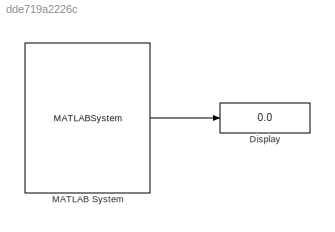
MODEL slx_dde719a2226c
KIND model
CONFIG AbsTol = auto
CONFIG EnableMultiTasking = on
CONFIG FixedStep = 0.001
CONFIG MaxStep = auto
CONFIG MinStep = auto
CONFIG RelTol = 1e-3
CONFIG SampleTimeConstraint = Unconstrained
CONFIG Solver = FixedStepDiscrete
CONFIG SolverName = FixedStepDiscrete
CONFIG StartTime = 0.0
CONFIG StopTime = 20
BLOCK [Display] Display
  Decimation = 1
  Ports = [1]
BLOCK [MATLABSystem] MATLAB System
  MaskDisplay = image('Encoder-Basics-1.jpg');\nport_label('output',1,'reading');
  MaskType = Encoder_Sim
  Ports = [0, 1]
  System = Encoder_Sim
  pinNumber1 = 5
  pinNumber2 = 6
LINE MATLAB System:1 -> Display:1
